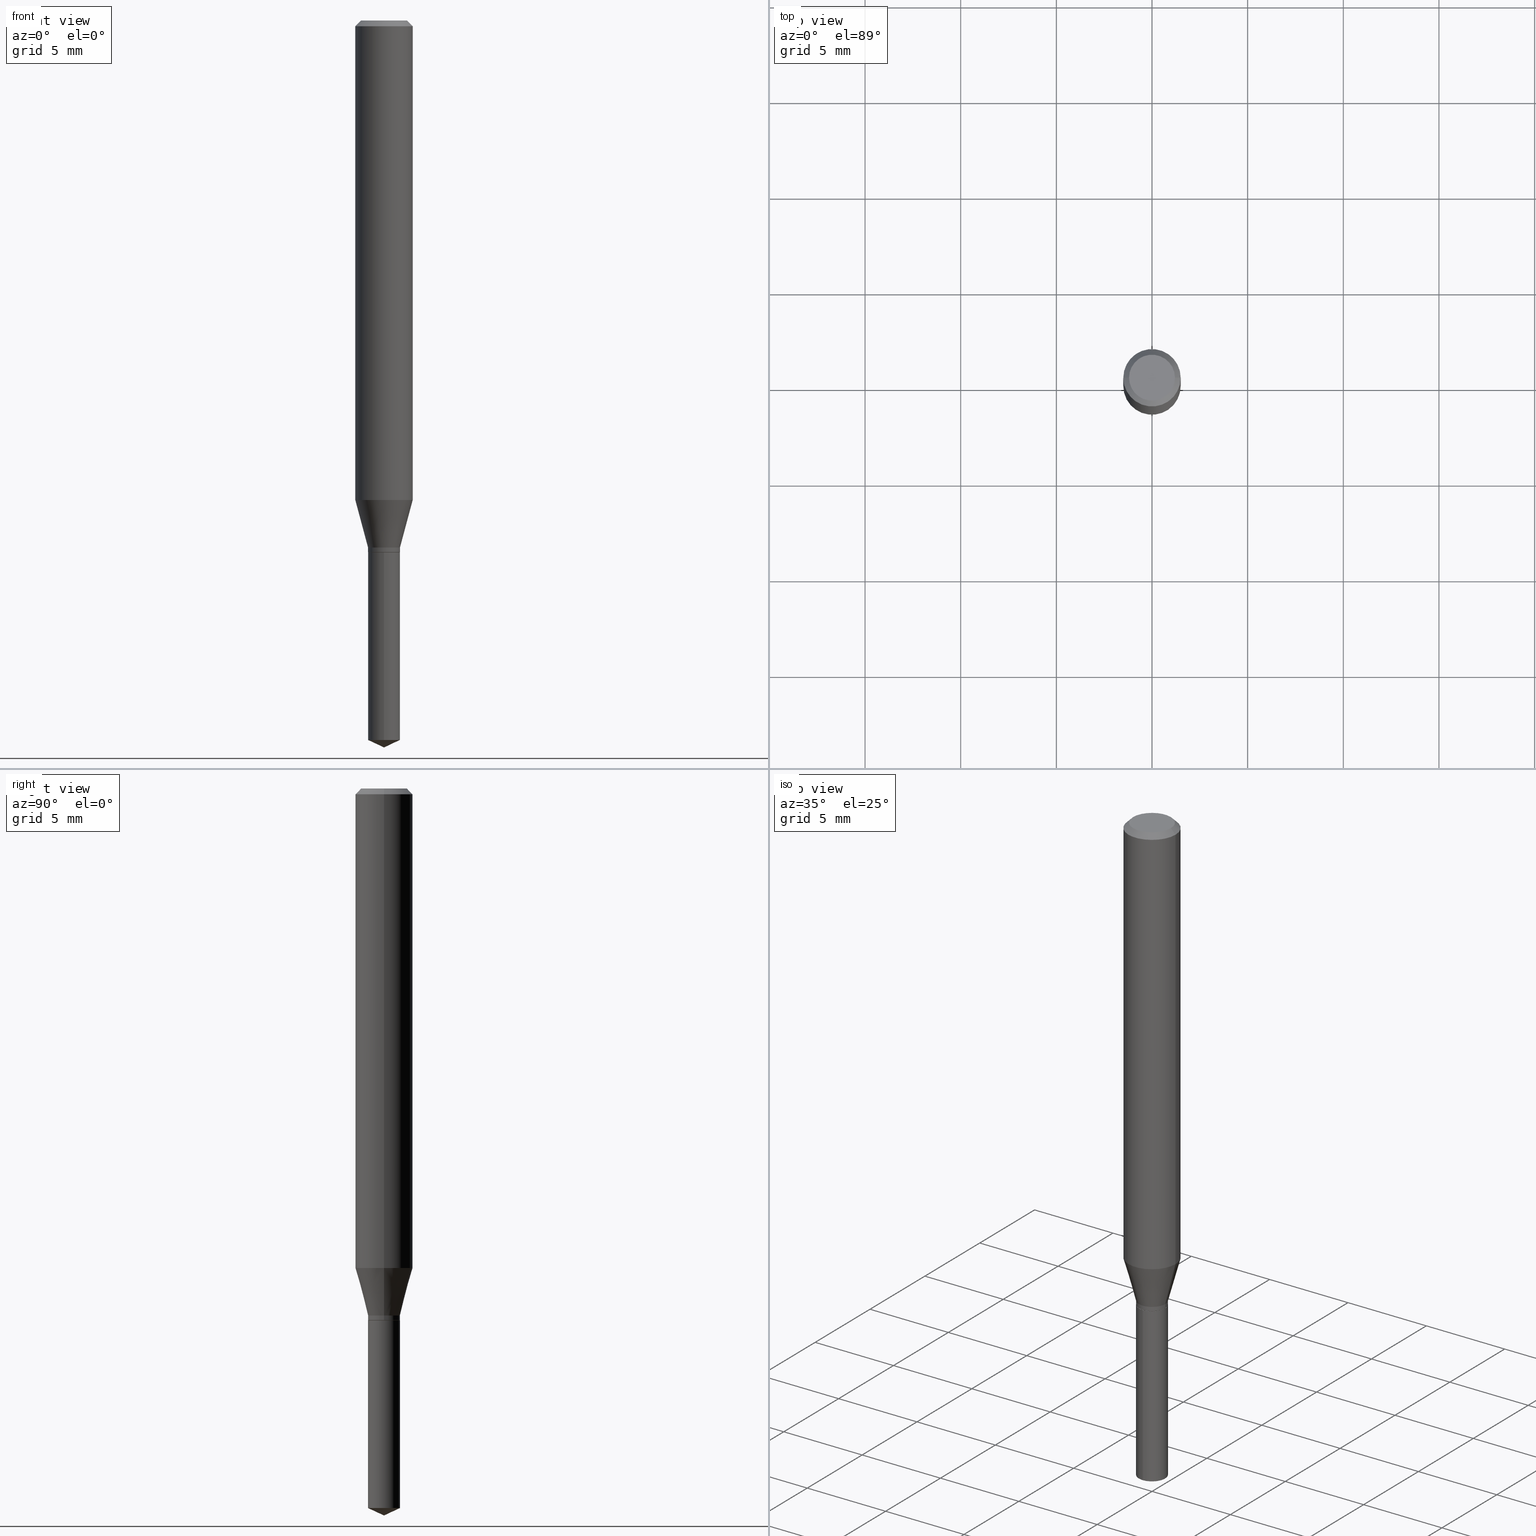
[diagram: canonical four-view strip — front | top / right | iso, engineering-drawing reading convention]
A machine part, canonical four-view strip (front | top / right | iso — engineering-drawing reading convention). The complete STEP part file that produces these views, byte-faithful:
ISO-10303-21;
HEADER;
FILE_DESCRIPTION (( 'STEP AP203' ),
    '1' );
FILE_NAME ('07905.STEP',
    '2024-04-24T05:50:20',
    ( '' ),
    ( '' ),
    'SwSTEP 2.0',
    'SolidWorks 2023',
    '' );
FILE_SCHEMA (( 'CONFIG_CONTROL_DESIGN' ));
ENDSEC;

DATA;
#1 = CARTESIAN_POINT ( 'NONE',  ( 2.888098660104664204E-31, -4.123439461173780263E-17, -0.01181000000000007218 ) ) ;
#2 = CONICAL_SURFACE ( 'NONE', #67, 84.42940631927396566, 1.134464013796314230 ) ;
#3 = DATE_AND_TIME ( #455, #416 ) ;
#4 = CC_DESIGN_APPROVAL ( #61, ( #77 ) ) ;
#5 = ORIENTED_EDGE ( 'NONE', *, *, #81, .F. ) ;
#6 = DIRECTION ( 'NONE',  ( 1.000000000000000000, -6.982962677686266711E-15, 0.000000000000000000 ) ) ;
#7 = ORIENTED_EDGE ( 'NONE', *, *, #263, .T. ) ;
#8 = DIRECTION ( 'NONE',  ( -2.445468806185136877E-29, 3.491481338843145188E-15, 1.000000000000000000 ) ) ;
#9 = ORIENTED_EDGE ( 'NONE', *, *, #81, .T. ) ;
#10 = PERSON ( 'UNSPECIFIED', 'UNSPECIFIED', 'UNSPECIFIED', ('UNSPECIFIED'), ('UNSPECIFIED'), ('UNSPECIFIED') ) ;
#11 = UNCERTAINTY_MEASURE_WITH_UNIT (LENGTH_MEASURE( 1.000000000000000082E-05 ), #420, 'distance_accuracy_value', 'NONE');
#12 = VECTOR ( 'NONE', #133, 39.37007874015748143 ) ;
#13 = ORIENTED_EDGE ( 'NONE', *, *, #481, .T. ) ;
#14 = APPROVAL_PERSON_ORGANIZATION ( #109, #231, #113 ) ;
#15 = CARTESIAN_POINT ( 'NONE',  ( 2.652355467188399034E-29, -3.786860660109275425E-15, -1.084600000000000009 ) ) ;
#16 = ORIENTED_EDGE ( 'NONE', *, *, #24, .F. ) ;
#17 = ADVANCED_FACE ( 'NONE', ( #473 ), #139, .T. ) ;
#18 = CARTESIAN_POINT ( 'NONE',  ( 0.05905000000000011628, -3.857808499570329297E-15, -0.9868202688416950474 ) ) ;
#19 = LINE ( 'NONE', #390, #128 ) ;
#20 = APPLICATION_CONTEXT ( 'configuration controlled 3d designs of mechanical parts and assemblies' ) ;
#21 = VECTOR ( 'NONE', #406, 39.37007874015748143 ) ;
#22 = CIRCLE ( 'NONE', #104, 0.03284999999999999726 ) ;
#23 = DIRECTION ( 'NONE',  ( -2.445468806185136597E-29, 3.491481338843145583E-15, 1.000000000000000000 ) ) ;
#24 = EDGE_CURVE ( 'NONE', #42, #486, #441, .T. ) ;
#25 = CARTESIAN_POINT ( 'NONE',  ( -0.03284999999999999726, -3.553447371412082977E-15, -1.084600000000000009 ) ) ;
#26 = VERTEX_POINT ( 'NONE', #65 ) ;
#27 = DIRECTION ( 'NONE',  ( -2.445468806185136597E-29, 3.491481338843145583E-15, 1.000000000000000000 ) ) ;
#28 = DIRECTION ( 'NONE',  ( 1.000000000000000000, -6.982962677686272233E-15, 0.000000000000000000 ) ) ;
#29 = DIRECTION ( 'NONE',  ( 1.000000000000000000, -6.982962677686273021E-15, 0.000000000000000000 ) ) ;
#31 = EDGE_CURVE ( 'NONE', #289, #193, #248, .T. ) ;
#30 = AXIS2_PLACEMENT_3D ( 'NONE', #384, #343, #64 ) ;
#32 = DIRECTION ( 'NONE',  ( 1.000000000000000000, -6.982962677686266711E-15, 0.000000000000000000 ) ) ;
#33 = PLANE ( 'NONE',  #250 ) ;
#34 = COORDINATED_UNIVERSAL_TIME_OFFSET ( 5, 0, .BEHIND. ) ;
#35 = CARTESIAN_POINT ( 'NONE',  ( 4.132873053354867254E-48, -5.900647395337818946E-34, -1.690012582823346072E-19 ) ) ;
#36 = AXIS2_PLACEMENT_3D ( 'NONE', #426, #41, #484 ) ;
#37 = AXIS2_PLACEMENT_3D ( 'NONE', #245, #136, #433 ) ;
#38 = PERSON_AND_ORGANIZATION ( #10, #142 ) ;
#39 = EDGE_LOOP ( 'NONE', ( #463, #218 ) ) ;
#40 = DIRECTION ( 'NONE',  ( -2.445470214571802116E-29, 3.491479321953280158E-15, 1.000000000000000000 ) ) ;
#41 = DIRECTION ( 'NONE',  ( -2.445468806185136597E-29, 3.491481338843145583E-15, 1.000000000000000000 ) ) ;
#42 = VERTEX_POINT ( 'NONE', #293 ) ;
#43 = ADVANCED_FACE ( 'NONE', ( #359 ), #105, .T. ) ;
#44 = PERSON_AND_ORGANIZATION_ROLE ( 'creator' ) ;
#45 = EDGE_CURVE ( 'NONE', #268, #114, #254, .T. ) ;
#46 = CIRCLE ( 'NONE', #197, 0.03284999999999999726 ) ;
#47 = ORIENTED_EDGE ( 'NONE', *, *, #45, .T. ) ;
#48 = VERTEX_POINT ( 'NONE', #450 ) ;
#49 = EDGE_LOOP ( 'NONE', ( #262, #51, #301, #239 ) ) ;
#50 = DIRECTION ( 'NONE',  ( -6.982962677686266711E-15, -1.000000000000000000, 4.158063917297204420E-15 ) ) ;
#51 = ORIENTED_EDGE ( 'NONE', *, *, #31, .T. ) ;
#52 = CC_DESIGN_SECURITY_CLASSIFICATION ( #77, ( #444 ) ) ;
#53 = CARTESIAN_POINT ( 'NONE',  ( 0.000000000000000000, 0.000000000000000000, 0.000000000000000000 ) ) ;
#54 = ORIENTED_EDGE ( 'NONE', *, *, #240, .F. ) ;
#55 = DIRECTION ( 'NONE',  ( -2.445468806185136877E-29, 3.491481338843145188E-15, 1.000000000000000000 ) ) ;
#56 = CARTESIAN_POINT ( 'NONE',  ( 2.676565608369631794E-29, -3.821426325363822773E-15, -1.094499999999999806 ) ) ;
#57 = ADVANCED_FACE ( 'NONE', ( #108 ), #58, .T. ) ;
#58 = CONICAL_SURFACE ( 'NONE', #141, 0.03234999999999999681, 0.7853981633972775267 ) ;
#59 = AXIS2_PLACEMENT_3D ( 'NONE', #453, #479, #171 ) ;
#60 = DIRECTION ( 'NONE',  ( -2.445468806185136597E-29, 3.491481338843145583E-15, 1.000000000000000000 ) ) ;
#61 = APPROVAL ( #294, 'UNSPECIFIED' ) ;
#62 = PERSON_AND_ORGANIZATION ( #10, #142 ) ;
#63 = DIRECTION ( 'NONE',  ( -0.2588190451025211836, 5.211531920934547886E-15, 0.9659258262890679791 ) ) ;
#64 = DIRECTION ( 'NONE',  ( 1.000000000000000000, 0.000000000000000000, 0.000000000000000000 ) ) ;
#65 = CARTESIAN_POINT ( 'NONE',  ( -0.05904999999999999832, -1.323773988566005771E-15, -0.01181000000000007218 ) ) ;
#66 = CARTESIAN_POINT ( 'NONE',  ( 2.675342873966538993E-29, -3.819680584694400481E-15, -1.093999999999999861 ) ) ;
#67 = AXIS2_PLACEMENT_3D ( 'NONE', #183, #398, #215 ) ;
#68 = LOCAL_TIME ( 1, 50, 20.00000000000000000, #80 ) ;
#69 = APPROVAL_ROLE ( '' ) ;
#70 = ORIENTED_EDGE ( 'NONE', *, *, #87, .T. ) ;
#71 = LINE ( 'NONE', #334, #134 ) ;
#72 = CARTESIAN_POINT ( 'NONE',  ( 0.03284999999999999726, -4.016250984071269671E-15, -1.084600000000000009 ) ) ;
#73 = LINE ( 'NONE', #220, #377 ) ;
#74 = DIRECTION ( 'NONE',  ( -2.445468806185136597E-29, 3.491481338843145583E-15, 1.000000000000000000 ) ) ;
#75 = DATE_TIME_ROLE ( 'creation_date' ) ;
#76 = ORIENTED_EDGE ( 'NONE', *, *, #200, .F. ) ;
#77 = SECURITY_CLASSIFICATION ( '', '', #447 ) ;
#78 = SHAPE_DEFINITION_REPRESENTATION ( #156, #170 ) ;
#79 = ORIENTED_EDGE ( 'NONE', *, *, #31, .F. ) ;
#80 = COORDINATED_UNIVERSAL_TIME_OFFSET ( 5, 0, .BEHIND. ) ;
#81 = EDGE_CURVE ( 'NONE', #340, #268, #414, .T. ) ;
#82 = EDGE_LOOP ( 'NONE', ( #151, #316 ) ) ;
#83 = AXIS2_PLACEMENT_3D ( 'NONE', #187, #369, #111 ) ;
#84 = CIRCLE ( 'NONE', #59, 0.03284999999999999726 ) ;
#85 = ORIENTED_EDGE ( 'NONE', *, *, #94, .F. ) ;
#86 = EDGE_LOOP ( 'NONE', ( #85, #310, #338, #5 ) ) ;
#87 = EDGE_CURVE ( 'NONE', #116, #48, #19, .T. ) ;
#88 = ORIENTED_EDGE ( 'NONE', *, *, #382, .T. ) ;
#89 = CARTESIAN_POINT ( 'NONE',  ( -9.261968845786000133E-28, 1.322362114038720264E-13, 37.87397874015748300 ) ) ;
#90 = VECTOR ( 'NONE', #178, 39.37007874015748854 ) ;
#91 = ADVANCED_FACE ( 'NONE', ( #392 ), #95, .T. ) ;
#92 = ORIENTED_EDGE ( 'NONE', *, *, #45, .F. ) ;
#93 = DIRECTION ( 'NONE',  ( -2.445468806185136597E-29, 3.491481338843145583E-15, 1.000000000000000000 ) ) ;
#94 = EDGE_CURVE ( 'NONE', #193, #340, #393, .T. ) ;
#95 = CYLINDRICAL_SURFACE ( 'NONE', #460, 0.03284999999999999726 ) ;
#96 = LINE ( 'NONE', #25, #237 ) ;
#97 = CC_DESIGN_APPROVAL ( #115, ( #444 ) ) ;
#98 = CARTESIAN_POINT ( 'NONE',  ( 2.676565608369632355E-29, -3.821426325363822773E-15, -1.094500000000000028 ) ) ;
#99 = CARTESIAN_POINT ( 'NONE',  ( 2.676565608369632355E-29, -3.821426325363822773E-15, -1.094500000000000028 ) ) ;
#100 = ADVANCED_FACE ( 'NONE', ( #431 ), #265, .T. ) ;
#101 = CARTESIAN_POINT ( 'NONE',  ( 0.05905000000000006077, -4.123439461173744764E-16, 2.879382386107503023E-30 ) ) ;
#102 = AXIS2_PLACEMENT_3D ( 'NONE', #285, #480, #368 ) ;
#103 = CARTESIAN_POINT ( 'NONE',  ( -0.05905000000000011628, -3.025889067986614883E-15, -0.9868202688416950474 ) ) ;
#104 = AXIS2_PLACEMENT_3D ( 'NONE', #302, #40, #381 ) ;
#105 = CYLINDRICAL_SURFACE ( 'NONE', #83, 0.05905000000000006077 ) ;
#106 = CARTESIAN_POINT ( 'NONE',  ( 0.03234999999999999681, -4.047325167986974013E-15, -1.094500000000000028 ) ) ;
#107 = ADVANCED_FACE ( 'NONE', ( #465 ), #260, .T. ) ;
#108 = FACE_OUTER_BOUND ( 'NONE', #365, .T. ) ;
#109 = PERSON_AND_ORGANIZATION ( #10, #142 ) ;
#110 = EDGE_LOOP ( 'NONE', ( #418, #456, #383, #76 ) ) ;
#111 = DIRECTION ( 'NONE',  ( 1.000000000000000000, -6.982962677686266711E-15, 4.876176775795935793E-29 ) ) ;
#112 = CC_DESIGN_APPROVAL ( #231, ( #219 ) ) ;
#113 = APPROVAL_ROLE ( '' ) ;
#114 = VERTEX_POINT ( 'NONE', #18 ) ;
#115 = APPROVAL ( #217, 'UNSPECIFIED' ) ;
#116 = VERTEX_POINT ( 'NONE', #158 ) ;
#117 = ORIENTED_EDGE ( 'NONE', *, *, #179, .F. ) ;
#118 = VECTOR ( 'NONE', #434, 39.37007874015748143 ) ;
#119 = CIRCLE ( 'NONE', #470, 0.03284999999999999726 ) ;
#120 = ORIENTED_EDGE ( 'NONE', *, *, #240, .T. ) ;
#121 = CARTESIAN_POINT ( 'NONE',  ( 3.621206228633116670E-29, -5.170121219570327445E-15, -1.480781793429608140 ) ) ;
#122 = ADVANCED_FACE ( 'NONE', ( #127 ), #271, .T. ) ;
#123 = DIRECTION ( 'NONE',  ( -2.445468806185136597E-29, 3.491481338843145583E-15, 1.000000000000000000 ) ) ;
#124 = ORIENTED_EDGE ( 'NONE', *, *, #279, .F. ) ;
#125 = CARTESIAN_POINT ( 'NONE',  ( 2.888098660104664204E-31, -4.123439461173780263E-17, -0.01181000000000007218 ) ) ;
#126 = ORIENTED_EDGE ( 'NONE', *, *, #439, .F. ) ;
#127 = FACE_OUTER_BOUND ( 'NONE', #110, .T. ) ;
#128 = VECTOR ( 'NONE', #204, 39.37007874015748143 ) ;
#129 = ADVANCED_FACE ( 'NONE', ( #421 ), #394, .T. ) ;
#130 = DIRECTION ( 'NONE',  ( -6.982962677686266711E-15, -1.000000000000000000, 4.158063917297204420E-15 ) ) ;
#131 = DIRECTION ( 'NONE',  ( -2.445470214571802116E-29, 3.491479321953280158E-15, 1.000000000000000000 ) ) ;
#132 = DESIGN_CONTEXT ( 'detailed design', #356, 'design' ) ;
#133 = DIRECTION ( 'NONE',  ( -2.445468806185136877E-29, 3.491481338843145188E-15, 1.000000000000000000 ) ) ;
#134 = VECTOR ( 'NONE', #174, 39.37007874015748143 ) ;
#135 = CARTESIAN_POINT ( 'NONE',  ( 2.676565608369631794E-29, -3.821426325363822773E-15, -1.094499999999999806 ) ) ;
#136 = DIRECTION ( 'NONE',  ( -2.445468806185136597E-29, 3.491481338843145583E-15, 1.000000000000000000 ) ) ;
#137 =( LENGTH_UNIT ( ) NAMED_UNIT ( * ) SI_UNIT ( $, .METRE. ) );
#138 = DIRECTION ( 'NONE',  ( -2.445470214571802396E-29, 3.491479321953280158E-15, 1.000000000000000000 ) ) ;
#139 = CONICAL_SURFACE ( 'NONE', #206, 0.05904999999999999832, 0.7853981633974452814 ) ;
#140 = EDGE_CURVE ( 'NONE', #340, #308, #96, .T. ) ;
#141 = AXIS2_PLACEMENT_3D ( 'NONE', #435, #74, #184 ) ;
#142 = ORGANIZATION ( 'UNSPECIFIED', 'UNSPECIFIED', '' ) ;
#143 = CARTESIAN_POINT ( 'NONE',  ( -2.293903239619670800E-16, -0.03285000000000382059, -1.094499999999999806 ) ) ;
#144 = CALENDAR_DATE ( 2024, 24, 4 ) ;
#145 = DIRECTION ( 'NONE',  ( 0.7071067811865453523, -7.319954787623248157E-15, -0.7071067811865496822 ) ) ;
#146 = COORDINATED_UNIVERSAL_TIME_OFFSET ( 5, 0, .BEHIND. ) ;
#147 = ORIENTED_EDGE ( 'NONE', *, *, #346, .F. ) ;
#148 = CIRCLE ( 'NONE', #401, 0.03234999999999999681 ) ;
#149 = VECTOR ( 'NONE', #309, 39.37007874015748854 ) ;
#150 = ORIENTED_EDGE ( 'NONE', *, *, #140, .F. ) ;
#151 = ORIENTED_EDGE ( 'NONE', *, *, #229, .F. ) ;
#152 = CARTESIAN_POINT ( 'NONE',  ( -0.03284999999999999726, -3.569857333704645111E-15, -1.084600000000000009 ) ) ;
#153 = ORIENTED_EDGE ( 'NONE', *, *, #459, .T. ) ;
#154 = AXIS2_PLACEMENT_3D ( 'NONE', #213, #123, #312 ) ;
#155 = ORIENTED_EDGE ( 'NONE', *, *, #266, .T. ) ;
#156 = PRODUCT_DEFINITION_SHAPE ( 'NONE', 'NONE',  #219 ) ;
#157 = APPLICATION_PROTOCOL_DEFINITION ( 'international standard', 'config_control_design', 1994, #20 ) ;
#158 = CARTESIAN_POINT ( 'NONE',  ( 3.658667988020872822E-29, -5.223602213574301462E-15, -1.496099999999999985 ) ) ;
#159 = ORIENTED_EDGE ( 'NONE', *, *, #357, .F. ) ;
#160 = DIRECTION ( 'NONE',  ( 1.000000000000000000, -6.982962677686266711E-15, 0.000000000000000000 ) ) ;
#161 = DIRECTION ( 'NONE',  ( -2.445468806185136597E-29, 3.491481338843145583E-15, 1.000000000000000000 ) ) ;
#162 = EDGE_CURVE ( 'NONE', #490, #287, #163, .T. ) ;
#163 = LINE ( 'NONE', #278, #223 ) ;
#164 = AXIS2_PLACEMENT_3D ( 'NONE', #205, #468, #274 ) ;
#165 = AXIS2_PLACEMENT_3D ( 'NONE', #35, #288, #442 ) ;
#166 = CARTESIAN_POINT ( 'NONE',  ( 0.03284999999999999726, -2.293903239619938520E-16, 1.601824070848965135E-30 ) ) ;
#167 = DIRECTION ( 'NONE',  ( 1.000000000000000000, -6.982962677686266711E-15, 4.876176775795936914E-29 ) ) ;
#168 = CYLINDRICAL_SURFACE ( 'NONE', #37, 0.05905000000000006077 ) ;
#169 = FACE_OUTER_BOUND ( 'NONE', #39, .T. ) ;
#170 = ADVANCED_BREP_SHAPE_REPRESENTATION ( '07905', ( #277, #267, #30 ), #207 ) ;
#171 = DIRECTION ( 'NONE',  ( -6.982962677686266711E-15, -1.000000000000000000, 0.000000000000000000 ) ) ;
#172 = CIRCLE ( 'NONE', #299, 0.05905000000000011628 ) ;
#173 = CIRCLE ( 'NONE', #478, 0.05905000000000011628 ) ;
#174 = DIRECTION ( 'NONE',  ( -0.7071067811865453523, 2.468850131082234184E-15, -0.7071067811865496822 ) ) ;
#175 = CARTESIAN_POINT ( 'NONE',  ( 0.04724000000000000421, -3.852183633974369345E-16, -3.380025165621689721E-19 ) ) ;
#176 = PLANE ( 'NONE',  #165 ) ;
#177 = DIRECTION ( 'NONE',  ( 1.000000000000000000, -6.982962677686266711E-15, 0.000000000000000000 ) ) ;
#178 = DIRECTION ( 'NONE',  ( 0.2588190451025211836, 1.565188264969622559E-15, 0.9659258262890679791 ) ) ;
#179 = EDGE_CURVE ( 'NONE', #486, #42, #370, .T. ) ;
#180 = APPROVAL_DATE_TIME ( #412, #115 ) ;
#181 = EDGE_LOOP ( 'NONE', ( #333, #13, #452 ) ) ;
#182 = CONICAL_SURFACE ( 'NONE', #430, 0.03284999999999999726, 0.2617993877991499074 ) ;
#183 = CARTESIAN_POINT ( 'NONE',  ( -9.261968845786000133E-28, 1.322362114038720264E-13, 37.87397874015748300 ) ) ;
#184 = DIRECTION ( 'NONE',  ( 1.000000000000000000, -6.982962677686272233E-15, 0.000000000000000000 ) ) ;
#185 = DATE_AND_TIME ( #225, #68 ) ;
#186 = LINE ( 'NONE', #296, #446 ) ;
#187 = CARTESIAN_POINT ( 'NONE',  ( 0.000000000000000000, 0.000000000000000000, 0.000000000000000000 ) ) ;
#188 = ORIENTED_EDGE ( 'NONE', *, *, #266, .F. ) ;
#189 = ADVANCED_FACE ( 'NONE', ( #241 ), #182, .T. ) ;
#190 = PERSON_AND_ORGANIZATION ( #10, #142 ) ;
#191 = DIRECTION ( 'NONE',  ( -6.982962677686266711E-15, -1.000000000000000000, 0.000000000000000000 ) ) ;
#192 = EDGE_LOOP ( 'NONE', ( #159, #16, #234, #153 ) ) ;
#193 = VERTEX_POINT ( 'NONE', #471 ) ;
#194 = VERTEX_POINT ( 'NONE', #427 ) ;
#195 =( NAMED_UNIT ( * ) PLANE_ANGLE_UNIT ( ) SI_UNIT ( $, .RADIAN. ) );
#196 = AXIS2_PLACEMENT_3D ( 'NONE', #318, #60, #280 ) ;
#197 = AXIS2_PLACEMENT_3D ( 'NONE', #15, #211, #233 ) ;
#198 = ORIENTED_EDGE ( 'NONE', *, *, #436, .T. ) ;
#199 = CARTESIAN_POINT ( 'NONE',  ( 2.676565608369631794E-29, -3.821426325363822773E-15, -1.094499999999999806 ) ) ;
#200 = EDGE_CURVE ( 'NONE', #269, #268, #242, .T. ) ;
#201 = DIRECTION ( 'NONE',  ( -2.445470214571802396E-29, 3.491479321953280158E-15, 1.000000000000000000 ) ) ;
#202 = DIRECTION ( 'NONE',  ( 2.445468806185136597E-29, -3.491481338843145583E-15, -1.000000000000000000 ) ) ;
#203 = CC_DESIGN_PERSON_AND_ORGANIZATION_ASSIGNMENT ( #488, #44, ( #219 ) ) ;
#204 = DIRECTION ( 'NONE',  ( -6.328713451373368590E-15, -0.9063077870366484934, 0.4226182617407026054 ) ) ;
#205 = CARTESIAN_POINT ( 'NONE',  ( 2.652355467188399034E-29, -3.786860660109275425E-15, -1.084600000000000009 ) ) ;
#206 = AXIS2_PLACEMENT_3D ( 'NONE', #397, #202, #276 ) ;
#207 =( GEOMETRIC_REPRESENTATION_CONTEXT ( 3 ) GLOBAL_UNCERTAINTY_ASSIGNED_CONTEXT ( ( #11 ) ) GLOBAL_UNIT_ASSIGNED_CONTEXT ( ( #420, #195, #437 ) ) REPRESENTATION_CONTEXT ( 'NONE', 'WORKASPACE' ) );
#208 = DIRECTION ( 'NONE',  ( -2.445468806185136597E-29, 3.491481338843145583E-15, 1.000000000000000000 ) ) ;
#209 = ADVANCED_FACE ( 'NONE', ( #353 ), #281, .T. ) ;
#210 = CARTESIAN_POINT ( 'NONE',  ( 2.676565608369631794E-29, -3.821426325363822773E-15, -1.094499999999999806 ) ) ;
#211 = DIRECTION ( 'NONE',  ( -2.445468806185136597E-29, 3.491481338843145583E-15, 1.000000000000000000 ) ) ;
#212 = DIRECTION ( 'NONE',  ( 2.445470214571801836E-29, -3.491479321953280158E-15, -1.000000000000000000 ) ) ;
#213 = CARTESIAN_POINT ( 'NONE',  ( 2.652355467188399034E-29, -3.786860660109275425E-15, -1.084600000000000009 ) ) ;
#214 = DIRECTION ( 'NONE',  ( -2.445470214571802116E-29, 3.491479321953280158E-15, 1.000000000000000000 ) ) ;
#215 = DIRECTION ( 'NONE',  ( -6.982962677686267499E-15, -1.000000000000000000, 3.520397390770469253E-15 ) ) ;
#216 = ADVANCED_FACE ( 'NONE', ( #428 ), #243, .T. ) ;
#217 = APPROVAL_STATUS ( 'not_yet_approved' ) ;
#218 = ORIENTED_EDGE ( 'NONE', *, *, #439, .T. ) ;
#219 = PRODUCT_DEFINITION ( 'UNKNOWN', '', #444, #132 ) ;
#220 = CARTESIAN_POINT ( 'NONE',  ( -0.05905000000000006077, 4.195754854663395916E-16, -2.904631170795524694E-30 ) ) ;
#221 = DIMENSIONAL_EXPONENTS ( 1.000000000000000000, 0.000000000000000000, 0.000000000000000000, 0.000000000000000000, 0.000000000000000000, 0.000000000000000000, 0.000000000000000000 ) ;
#222 = COORDINATED_UNIVERSAL_TIME_OFFSET ( 5, 0, .BEHIND. ) ;
#223 = VECTOR ( 'NONE', #201, 39.37007874015748143 ) ;
#224 = LOCAL_TIME ( 1, 50, 20.00000000000000000, #371 ) ;
#225 = CALENDAR_DATE ( 2024, 24, 4 ) ;
#226 = DIRECTION ( 'NONE',  ( -2.445470214571802116E-29, 3.491479321953280158E-15, 1.000000000000000000 ) ) ;
#227 = ORIENTED_EDGE ( 'NONE', *, *, #357, .T. ) ;
#229 = EDGE_CURVE ( 'NONE', #415, #289, #148, .T. ) ;
#228 = LOCAL_TIME ( 1, 50, 20.00000000000000000, #34 ) ;
#230 = ORIENTED_EDGE ( 'NONE', *, *, #179, .T. ) ;
#231 = APPROVAL ( #326, 'UNSPECIFIED' ) ;
#232 = ORIENTED_EDGE ( 'NONE', *, *, #279, .T. ) ;
#233 = DIRECTION ( 'NONE',  ( 1.000000000000000000, -6.982962677686273021E-15, 0.000000000000000000 ) ) ;
#234 = ORIENTED_EDGE ( 'NONE', *, *, #259, .T. ) ;
#235 = DIRECTION ( 'NONE',  ( -2.445468806185136597E-29, 3.491481338843145583E-15, 1.000000000000000000 ) ) ;
#236 = DIRECTION ( 'NONE',  ( 1.000000000000000000, -6.982962677686266711E-15, 4.876185090822587894E-29 ) ) ;
#237 = VECTOR ( 'NONE', #63, 39.37007874015748854 ) ;
#238 = LOCAL_TIME ( 1, 50, 20.00000000000000000, #146 ) ;
#239 = ORIENTED_EDGE ( 'NONE', *, *, #317, .F. ) ;
#240 = EDGE_CURVE ( 'NONE', #114, #255, #258, .T. ) ;
#241 = FACE_OUTER_BOUND ( 'NONE', #457, .T. ) ;
#242 = LINE ( 'NONE', #166, #12 ) ;
#243 = CYLINDRICAL_SURFACE ( 'NONE', #409, 0.03284999999999999726 ) ;
#244 = DIRECTION ( 'NONE',  ( -2.445470214571802116E-29, 3.491479321953280158E-15, 1.000000000000000000 ) ) ;
#245 = CARTESIAN_POINT ( 'NONE',  ( 0.000000000000000000, 0.000000000000000000, 0.000000000000000000 ) ) ;
#246 = CARTESIAN_POINT ( 'NONE',  ( 0.03284999999999999726, -4.049070908656394727E-15, -1.093999999999999861 ) ) ;
#247 = FACE_OUTER_BOUND ( 'NONE', #411, .T. ) ;
#248 = LINE ( 'NONE', #445, #21 ) ;
#249 = PERSON_AND_ORGANIZATION_ROLE ( 'classification_officer' ) ;
#250 = AXIS2_PLACEMENT_3D ( 'NONE', #135, #212, #321 ) ;
#251 = AXIS2_PLACEMENT_3D ( 'NONE', #1, #339, #6 ) ;
#252 = ORIENTED_EDGE ( 'NONE', *, *, #423, .F. ) ;
#253 = LINE ( 'NONE', #106, #424 ) ;
#254 = LINE ( 'NONE', #72, #90 ) ;
#255 = VERTEX_POINT ( 'NONE', #290 ) ;
#256 = CARTESIAN_POINT ( 'NONE',  ( 2.334132886972291299E-16, 0.03284999999999617393, -1.094500000000000028 ) ) ;
#257 = DATE_AND_TIME ( #144, #238 ) ;
#258 = LINE ( 'NONE', #101, #118 ) ;
#259 = EDGE_CURVE ( 'NONE', #42, #26, #71, .T. ) ;
#260 = CONICAL_SURFACE ( 'NONE', #306, 0.05904999999999999832, 0.7853981633974452814 ) ;
#261 = CALENDAR_DATE ( 2024, 24, 4 ) ;
#262 = ORIENTED_EDGE ( 'NONE', *, *, #229, .T. ) ;
#263 = EDGE_CURVE ( 'NONE', #289, #415, #469, .T. ) ;
#264 = ORIENTED_EDGE ( 'NONE', *, *, #325, .T. ) ;
#265 = CONICAL_SURFACE ( 'NONE', #164, 0.03284999999999999726, 0.2617993877991499074 ) ;
#266 = EDGE_CURVE ( 'NONE', #114, #308, #172, .T. ) ;
#267 = MANIFOLD_SOLID_BREP ( 'Body-Move/Copy2[2]', #376 ) ;
#268 = VERTEX_POINT ( 'NONE', #366 ) ;
#269 = VERTEX_POINT ( 'NONE', #246 ) ;
#270 = CARTESIAN_POINT ( 'NONE',  ( 0.03234999999999999681, -4.047325167986974013E-15, -1.094500000000000028 ) ) ;
#271 = CYLINDRICAL_SURFACE ( 'NONE', #387, 0.03284999999999999726 ) ;
#272 = ADVANCED_FACE ( 'NONE', ( #169 ), #33, .F. ) ;
#273 = EDGE_LOOP ( 'NONE', ( #378, #327, #419, #124 ) ) ;
#274 = DIRECTION ( 'NONE',  ( 1.000000000000000000, -6.982962677686273021E-15, 0.000000000000000000 ) ) ;
#275 = VECTOR ( 'NONE', #55, 39.37007874015748143 ) ;
#276 = DIRECTION ( 'NONE',  ( -1.000000000000000000, 6.982962677686266711E-15, 0.000000000000000000 ) ) ;
#277 = MANIFOLD_SOLID_BREP ( 'Body-Move/Copy2[1]', #350 ) ;
#278 = CARTESIAN_POINT ( 'NONE',  ( 2.334132886972196142E-16, 0.03284999999999618087, -1.094500000000000028 ) ) ;
#279 = EDGE_CURVE ( 'NONE', #48, #194, #328, .T. ) ;
#280 = DIRECTION ( 'NONE',  ( 1.000000000000000000, -6.982962677686272233E-15, 0.000000000000000000 ) ) ;
#281 = CONICAL_SURFACE ( 'NONE', #196, 0.03234999999999999681, 0.7853981633972775267 ) ;
#282 = AXIS2_PLACEMENT_3D ( 'NONE', #199, #214, #50 ) ;
#283 = ADVANCED_FACE ( 'NONE', ( #400 ), #2, .T. ) ;
#284 = CARTESIAN_POINT ( 'NONE',  ( 2.334132886972290313E-16, 0.03284999999999482084, -1.480781793429608140 ) ) ;
#285 = CARTESIAN_POINT ( 'NONE',  ( -5.504995662457993253E-30, -8.442767328556305867E-15, -1.094500000000000028 ) ) ;
#286 = APPROVAL_DATE_TIME ( #185, #61 ) ;
#287 = VERTEX_POINT ( 'NONE', #256 ) ;
#288 = DIRECTION ( 'NONE',  ( 2.438088387897960049E-29, -3.491481338843145188E-15, -1.000000000000000000 ) ) ;
#289 = VERTEX_POINT ( 'NONE', #358 ) ;
#290 = CARTESIAN_POINT ( 'NONE',  ( 0.05904999999999999832, -4.535783407291118600E-16, -0.01181000000000007218 ) ) ;
#291 = DATE_TIME_ROLE ( 'classification_date' ) ;
#292 = ADVANCED_FACE ( 'NONE', ( #324 ), #449, .F. ) ;
#293 = CARTESIAN_POINT ( 'NONE',  ( -0.04724000000000000421, 3.504923541997677355E-16, -3.380025165670481712E-19 ) ) ;
#294 = APPROVAL_STATUS ( 'not_yet_approved' ) ;
#295 = ORIENTED_EDGE ( 'NONE', *, *, #374, .F. ) ;
#296 = CARTESIAN_POINT ( 'NONE',  ( 0.05904999999999999832, -4.463468013801466955E-16, -0.01181000000000007218 ) ) ;
#297 = CC_DESIGN_PERSON_AND_ORGANIZATION_ASSIGNMENT ( #190, #249, ( #77 ) ) ;
#298 = CALENDAR_DATE ( 2024, 24, 4 ) ;
#299 = AXIS2_PLACEMENT_3D ( 'NONE', #483, #408, #177 ) ;
#300 = ADVANCED_FACE ( 'NONE', ( #363 ), #176, .F. ) ;
#301 = ORIENTED_EDGE ( 'NONE', *, *, #454, .F. ) ;
#302 = CARTESIAN_POINT ( 'NONE',  ( 2.676565608369631794E-29, -3.821426325363822773E-15, -1.094499999999999806 ) ) ;
#303 = CC_DESIGN_PERSON_AND_ORGANIZATION_ASSIGNMENT ( #62, #367, ( #335 ) ) ;
#304 = ORIENTED_EDGE ( 'NONE', *, *, #436, .F. ) ;
#305 = EDGE_LOOP ( 'NONE', ( #117, #227, #344, #342 ) ) ;
#306 = AXIS2_PLACEMENT_3D ( 'NONE', #125, #347, #472 ) ;
#307 = CIRCLE ( 'NONE', #282, 0.03284999999999999726 ) ;
#308 = VERTEX_POINT ( 'NONE', #103 ) ;
#309 = DIRECTION ( 'NONE',  ( 6.439704144417024831E-15, 0.9063077870366513800, 0.4226182617406963327 ) ) ;
#310 = ORIENTED_EDGE ( 'NONE', *, *, #423, .T. ) ;
#311 = DIRECTION ( 'NONE',  ( -2.445470214571802116E-29, 3.491479321953280158E-15, 1.000000000000000000 ) ) ;
#312 = DIRECTION ( 'NONE',  ( 1.000000000000000000, -6.982962677686273021E-15, 0.000000000000000000 ) ) ;
#313 = DIRECTION ( 'NONE',  ( 1.000000000000000000, -6.982962677686273021E-15, 0.000000000000000000 ) ) ;
#314 = VECTOR ( 'NONE', #138, 39.37007874015748143 ) ;
#315 = AXIS2_PLACEMENT_3D ( 'NONE', #66, #354, #429 ) ;
#316 = ORIENTED_EDGE ( 'NONE', *, *, #263, .F. ) ;
#317 = EDGE_CURVE ( 'NONE', #415, #269, #253, .T. ) ;
#318 = CARTESIAN_POINT ( 'NONE',  ( 2.676565608369632355E-29, -3.821426325363822773E-15, -1.094500000000000028 ) ) ;
#319 = DIRECTION ( 'NONE',  ( 1.000000000000000000, -6.982962677686266711E-15, 4.876176775795936914E-29 ) ) ;
#320 = CYLINDRICAL_SURFACE ( 'NONE', #389, 0.03284999999999999726 ) ;
#321 = DIRECTION ( 'NONE',  ( 6.982962677686265922E-15, 1.000000000000000000, -3.491479321953280158E-15 ) ) ;
#322 = AXIS2_PLACEMENT_3D ( 'NONE', #99, #487, #28 ) ;
#323 = CARTESIAN_POINT ( 'NONE',  ( 2.413238184763595651E-29, -3.445464553452954771E-15, -0.9868202688416950474 ) ) ;
#324 = FACE_OUTER_BOUND ( 'NONE', #82, .T. ) ;
#325 = EDGE_CURVE ( 'NONE', #308, #26, #73, .T. ) ;
#326 = APPROVAL_STATUS ( 'not_yet_approved' ) ;
#327 = ORIENTED_EDGE ( 'NONE', *, *, #162, .T. ) ;
#328 = LINE ( 'NONE', #143, #314 ) ;
#329 = AXIS2_PLACEMENT_3D ( 'NONE', #89, #131, #352 ) ;
#330 = PERSON_AND_ORGANIZATION ( #10, #142 ) ;
#331 = CIRCLE ( 'NONE', #251, 0.05904999999999999832 ) ;
#332 = EDGE_CURVE ( 'NONE', #48, #490, #443, .T. ) ;
#333 = ORIENTED_EDGE ( 'NONE', *, *, #87, .F. ) ;
#334 = CARTESIAN_POINT ( 'NONE',  ( -0.05904999999999999832, 3.711095515056362547E-16, -0.01181000000000007218 ) ) ;
#335 = PRODUCT ( '07905', '07905', '', ( #464 ) ) ;
#336 = EDGE_LOOP ( 'NONE', ( #461, #70, #295 ) ) ;
#337 = PERSON_AND_ORGANIZATION_ROLE ( 'design_supplier' ) ;
#338 = ORIENTED_EDGE ( 'NONE', *, *, #200, .T. ) ;
#339 = DIRECTION ( 'NONE',  ( -2.445468806185136597E-29, 3.491481338843145583E-15, 1.000000000000000000 ) ) ;
#340 = VERTEX_POINT ( 'NONE', #152 ) ;
#341 = ORIENTED_EDGE ( 'NONE', *, *, #325, .F. ) ;
#342 = ORIENTED_EDGE ( 'NONE', *, *, #259, .F. ) ;
#343 = DIRECTION ( 'NONE',  ( 0.000000000000000000, 0.000000000000000000, 1.000000000000000000 ) ) ;
#344 = ORIENTED_EDGE ( 'NONE', *, *, #346, .T. ) ;
#345 = CARTESIAN_POINT ( 'NONE',  ( 2.675342873966538993E-29, -3.819680584694400481E-15, -1.093999999999999861 ) ) ;
#346 = EDGE_CURVE ( 'NONE', #255, #26, #331, .T. ) ;
#347 = DIRECTION ( 'NONE',  ( 2.445468806185136597E-29, -3.491481338843145583E-15, -1.000000000000000000 ) ) ;
#348 = CARTESIAN_POINT ( 'NONE',  ( 2.652355467188399034E-29, -3.786860660109275425E-15, -1.084600000000000009 ) ) ;
#349 = EDGE_CURVE ( 'NONE', #194, #287, #22, .T. ) ;
#350 = CLOSED_SHELL ( 'NONE', ( #417, #283, #129, #91, #272 ) ) ;
#351 = AXIS2_PLACEMENT_3D ( 'NONE', #121, #226, #191 ) ;
#352 = DIRECTION ( 'NONE',  ( -6.982962677686267499E-15, -1.000000000000000000, 3.520397390770469253E-15 ) ) ;
#353 = FACE_OUTER_BOUND ( 'NONE', #49, .T. ) ;
#354 = DIRECTION ( 'NONE',  ( -2.445468806185136597E-29, 3.491481338843145583E-15, 1.000000000000000000 ) ) ;
#355 = DIRECTION ( 'NONE',  ( -6.982962677686266711E-15, -1.000000000000000000, 4.158063917297204420E-15 ) ) ;
#356 = APPLICATION_CONTEXT ( 'configuration controlled 3d designs of mechanical parts and assemblies' ) ;
#357 = EDGE_CURVE ( 'NONE', #486, #255, #186, .T. ) ;
#358 = CARTESIAN_POINT ( 'NONE',  ( -0.03234999999999999681, -3.588916523171319234E-15, -1.094500000000000028 ) ) ;
#359 = FACE_OUTER_BOUND ( 'NONE', #489, .T. ) ;
#360 = AXIS2_PLACEMENT_3D ( 'NONE', #361, #235, #160 ) ;
#361 = CARTESIAN_POINT ( 'NONE',  ( 2.888098660104664204E-31, -4.123439461173780263E-17, -0.01181000000000007218 ) ) ;
#362 = PRODUCT_RELATED_PRODUCT_CATEGORY ( 'detail', '', ( #335 ) ) ;
#363 = FACE_OUTER_BOUND ( 'NONE', #380, .T. ) ;
#364 = APPROVAL_ROLE ( '' ) ;
#365 = EDGE_LOOP ( 'NONE', ( #79, #7, #391, #252 ) ) ;
#366 = CARTESIAN_POINT ( 'NONE',  ( 0.03284999999999999726, -4.016250984071269671E-15, -1.084600000000000009 ) ) ;
#367 = PERSON_AND_ORGANIZATION_ROLE ( 'design_owner' ) ;
#368 = DIRECTION ( 'NONE',  ( 1.000000000000000000, -6.982962677686265922E-15, 4.876176775795935793E-29 ) ) ;
#369 = DIRECTION ( 'NONE',  ( -2.445468806185136597E-29, 3.491481338843145583E-15, 1.000000000000000000 ) ) ;
#370 = CIRCLE ( 'NONE', #475, 0.04724000000000000421 ) ;
#371 = COORDINATED_UNIVERSAL_TIME_OFFSET ( 5, 0, .BEHIND. ) ;
#372 = CIRCLE ( 'NONE', #315, 0.03284999999999999726 ) ;
#373 = APPROVAL_DATE_TIME ( #257, #231 ) ;
#374 = EDGE_CURVE ( 'NONE', #490, #48, #84, .T. ) ;
#375 = PERSON_AND_ORGANIZATION ( #10, #142 ) ;
#376 = CLOSED_SHELL ( 'NONE', ( #209, #17, #476, #189, #122, #216, #100, #43, #107, #300, #292, #57 ) ) ;
#377 = VECTOR ( 'NONE', #8, 39.37007874015748143 ) ;
#378 = ORIENTED_EDGE ( 'NONE', *, *, #332, .T. ) ;
#379 = CIRCLE ( 'NONE', #360, 0.05904999999999999832 ) ;
#380 = EDGE_LOOP ( 'NONE', ( #466, #230 ) ) ;
#381 = DIRECTION ( 'NONE',  ( -6.982962677686266711E-15, -1.000000000000000000, 4.158063917297204420E-15 ) ) ;
#382 = EDGE_CURVE ( 'NONE', #268, #340, #46, .T. ) ;
#383 = ORIENTED_EDGE ( 'NONE', *, *, #382, .F. ) ;
#384 = CARTESIAN_POINT ( 'NONE',  ( 0.000000000000000000, 0.000000000000000000, 0.000000000000000000 ) ) ;
#385 = CC_DESIGN_DATE_AND_TIME_ASSIGNMENT ( #407, #75, ( #219 ) ) ;
#386 = EDGE_LOOP ( 'NONE', ( #150, #9, #47, #304 ) ) ;
#387 = AXIS2_PLACEMENT_3D ( 'NONE', #53, #93, #319 ) ;
#388 = LINE ( 'NONE', #467, #149 ) ;
#389 = AXIS2_PLACEMENT_3D ( 'NONE', #210, #311, #355 ) ;
#390 = CARTESIAN_POINT ( 'NONE',  ( 3.658664905062460986E-29, -5.223606628546217219E-15, -1.496099999999999985 ) ) ;
#391 = ORIENTED_EDGE ( 'NONE', *, *, #317, .T. ) ;
#392 = FACE_OUTER_BOUND ( 'NONE', #422, .T. ) ;
#393 = LINE ( 'NONE', #396, #275 ) ;
#394 = CONICAL_SURFACE ( 'NONE', #329, 84.42940631927396566, 1.134464013796314230 ) ;
#395 = CARTESIAN_POINT ( 'NONE',  ( 0.000000000000000000, 0.000000000000000000, 0.000000000000000000 ) ) ;
#396 = CARTESIAN_POINT ( 'NONE',  ( -0.03284999999999999726, 2.334132886971928916E-16, -1.615870177148736620E-30 ) ) ;
#397 = CARTESIAN_POINT ( 'NONE',  ( 2.888098660104664204E-31, -4.123439461173780263E-17, -0.01181000000000007218 ) ) ;
#398 = DIRECTION ( 'NONE',  ( -2.445470214571802116E-29, 3.491479321953280158E-15, 1.000000000000000000 ) ) ;
#399 = FACE_OUTER_BOUND ( 'NONE', #273, .T. ) ;
#400 = FACE_OUTER_BOUND ( 'NONE', #181, .T. ) ;
#401 = AXIS2_PLACEMENT_3D ( 'NONE', #98, #477, #438 ) ;
#402 = APPROVAL_PERSON_ORGANIZATION ( #38, #61, #364 ) ;
#403 = ORIENTED_EDGE ( 'NONE', *, *, #459, .F. ) ;
#404 = PERSON_AND_ORGANIZATION_ROLE ( 'creator' ) ;
#405 = DIRECTION ( 'NONE',  ( 0.7071067811864267805, -2.468850131080992517E-15, 0.7071067811866682540 ) ) ;
#406 = DIRECTION ( 'NONE',  ( -0.7071067811864267805, 7.493145998869918709E-15, 0.7071067811866682540 ) ) ;
#407 = DATE_AND_TIME ( #261, #228 ) ;
#408 = DIRECTION ( 'NONE',  ( -2.445468806185136597E-29, 3.491481338843145583E-15, 1.000000000000000000 ) ) ;
#409 = AXIS2_PLACEMENT_3D ( 'NONE', #395, #208, #167 ) ;
#410 = PERSON_AND_ORGANIZATION ( #10, #142 ) ;
#411 = EDGE_LOOP ( 'NONE', ( #155, #264, #147, #54 ) ) ;
#412 = DATE_AND_TIME ( #298, #224 ) ;
#413 = ORIENTED_EDGE ( 'NONE', *, *, #374, .T. ) ;
#414 = CIRCLE ( 'NONE', #154, 0.03284999999999999726 ) ;
#415 = VERTEX_POINT ( 'NONE', #270 ) ;
#416 = LOCAL_TIME ( 1, 50, 20.00000000000000000, #222 ) ;
#417 = ADVANCED_FACE ( 'NONE', ( #399 ), #320, .T. ) ;
#418 = ORIENTED_EDGE ( 'NONE', *, *, #454, .T. ) ;
#419 = ORIENTED_EDGE ( 'NONE', *, *, #349, .F. ) ;
#420 =( CONVERSION_BASED_UNIT ( 'INCH', #474 ) LENGTH_UNIT ( ) NAMED_UNIT ( #221 ) );
#421 = FACE_OUTER_BOUND ( 'NONE', #336, .T. ) ;
#422 = EDGE_LOOP ( 'NONE', ( #440, #413, #232, #126 ) ) ;
#423 = EDGE_CURVE ( 'NONE', #193, #269, #372, .T. ) ;
#424 = VECTOR ( 'NONE', #405, 39.37007874015748143 ) ;
#425 = CARTESIAN_POINT ( 'NONE',  ( 8.265746106709734507E-48, -1.180129479067563789E-33, -3.380025165646692144E-19 ) ) ;
#426 = CARTESIAN_POINT ( 'NONE',  ( 8.265746106709734507E-48, -1.180129479067563789E-33, -3.380025165646692144E-19 ) ) ;
#427 = CARTESIAN_POINT ( 'NONE',  ( -2.293903239619670800E-16, -0.03285000000000382059, -1.094499999999999806 ) ) ;
#428 = FACE_OUTER_BOUND ( 'NONE', #86, .T. ) ;
#429 = DIRECTION ( 'NONE',  ( 1.000000000000000000, -6.982962677686273021E-15, 0.000000000000000000 ) ) ;
#430 = AXIS2_PLACEMENT_3D ( 'NONE', #348, #161, #313 ) ;
#431 = FACE_OUTER_BOUND ( 'NONE', #386, .T. ) ;
#432 = APPROVAL_PERSON_ORGANIZATION ( #375, #115, #69 ) ;
#433 = DIRECTION ( 'NONE',  ( 1.000000000000000000, -6.982962677686266711E-15, 4.876176775795935793E-29 ) ) ;
#434 = DIRECTION ( 'NONE',  ( -2.445468806185136877E-29, 3.491481338843145188E-15, 1.000000000000000000 ) ) ;
#435 = CARTESIAN_POINT ( 'NONE',  ( 2.676565608369632355E-29, -3.821426325363822773E-15, -1.094500000000000028 ) ) ;
#436 = EDGE_CURVE ( 'NONE', #308, #114, #173, .T. ) ;
#437 =( NAMED_UNIT ( * ) SI_UNIT ( $, .STERADIAN. ) SOLID_ANGLE_UNIT ( ) );
#438 = DIRECTION ( 'NONE',  ( 1.000000000000000000, -6.982962677686272233E-15, 0.000000000000000000 ) ) ;
#439 = EDGE_CURVE ( 'NONE', #287, #194, #307, .T. ) ;
#440 = ORIENTED_EDGE ( 'NONE', *, *, #162, .F. ) ;
#441 = CIRCLE ( 'NONE', #36, 0.04724000000000000421 ) ;
#442 = DIRECTION ( 'NONE',  ( -1.000000000000000000, 6.982962677686265922E-15, -4.876176775795935793E-29 ) ) ;
#443 = CIRCLE ( 'NONE', #351, 0.03284999999999999726 ) ;
#444 = PRODUCT_DEFINITION_FORMATION_WITH_SPECIFIED_SOURCE ( 'ANY', '', #335, .NOT_KNOWN. ) ;
#445 = CARTESIAN_POINT ( 'NONE',  ( -0.03234999999999999681, -3.591565750345430435E-15, -1.094500000000000028 ) ) ;
#446 = VECTOR ( 'NONE', #145, 39.37007874015748143 ) ;
#447 = SECURITY_CLASSIFICATION_LEVEL ( 'unclassified' ) ;
#448 = CC_DESIGN_PERSON_AND_ORGANIZATION_ASSIGNMENT ( #410, #337, ( #444 ) ) ;
#449 = PLANE ( 'NONE',  #102 ) ;
#450 = CARTESIAN_POINT ( 'NONE',  ( -2.293903239619575644E-16, -0.03285000000000516673, -1.480781793429608140 ) ) ;
#451 = APPLICATION_PROTOCOL_DEFINITION ( 'international standard', 'config_control_design', 1994, #356 ) ;
#452 = ORIENTED_EDGE ( 'NONE', *, *, #332, .F. ) ;
#453 = CARTESIAN_POINT ( 'NONE',  ( 3.621206228633116670E-29, -5.170121219570327445E-15, -1.480781793429608140 ) ) ;
#454 = EDGE_CURVE ( 'NONE', #269, #193, #119, .T. ) ;
#455 = CALENDAR_DATE ( 2024, 24, 4 ) ;
#456 = ORIENTED_EDGE ( 'NONE', *, *, #94, .T. ) ;
#457 = EDGE_LOOP ( 'NONE', ( #88, #458, #188, #92 ) ) ;
#458 = ORIENTED_EDGE ( 'NONE', *, *, #140, .T. ) ;
#459 = EDGE_CURVE ( 'NONE', #26, #255, #379, .T. ) ;
#460 = AXIS2_PLACEMENT_3D ( 'NONE', #56, #244, #130 ) ;
#461 = ORIENTED_EDGE ( 'NONE', *, *, #481, .F. ) ;
#462 = CC_DESIGN_PERSON_AND_ORGANIZATION_ASSIGNMENT ( #330, #404, ( #444 ) ) ;
#463 = ORIENTED_EDGE ( 'NONE', *, *, #349, .T. ) ;
#464 = MECHANICAL_CONTEXT ( 'NONE', #20, 'mechanical' ) ;
#465 = FACE_OUTER_BOUND ( 'NONE', #192, .T. ) ;
#466 = ORIENTED_EDGE ( 'NONE', *, *, #24, .T. ) ;
#467 = CARTESIAN_POINT ( 'NONE',  ( 3.658668015054778287E-29, -5.223602213574301462E-15, -1.496099999999999985 ) ) ;
#468 = DIRECTION ( 'NONE',  ( -2.445468806185136597E-29, 3.491481338843145583E-15, 1.000000000000000000 ) ) ;
#469 = CIRCLE ( 'NONE', #322, 0.03234999999999999681 ) ;
#470 = AXIS2_PLACEMENT_3D ( 'NONE', #345, #482, #29 ) ;
#471 = CARTESIAN_POINT ( 'NONE',  ( -0.03284999999999999726, -3.569857333704645111E-15, -1.093999999999999861 ) ) ;
#472 = DIRECTION ( 'NONE',  ( -1.000000000000000000, 6.982962677686266711E-15, 0.000000000000000000 ) ) ;
#473 = FACE_OUTER_BOUND ( 'NONE', #305, .T. ) ;
#474 = LENGTH_MEASURE_WITH_UNIT ( LENGTH_MEASURE( 0.02539999999999999897 ), #137 );
#475 = AXIS2_PLACEMENT_3D ( 'NONE', #425, #23, #236 ) ;
#476 = ADVANCED_FACE ( 'NONE', ( #247 ), #168, .T. ) ;
#477 = DIRECTION ( 'NONE',  ( -2.445468806185136597E-29, 3.491481338843145583E-15, 1.000000000000000000 ) ) ;
#478 = AXIS2_PLACEMENT_3D ( 'NONE', #323, #27, #32 ) ;
#479 = DIRECTION ( 'NONE',  ( -2.445470214571802116E-29, 3.491479321953280158E-15, 1.000000000000000000 ) ) ;
#480 = DIRECTION ( 'NONE',  ( -2.438088387897960049E-29, 3.491481338843145188E-15, 1.000000000000000000 ) ) ;
#481 = EDGE_CURVE ( 'NONE', #116, #490, #388, .T. ) ;
#482 = DIRECTION ( 'NONE',  ( -2.445468806185136597E-29, 3.491481338843145583E-15, 1.000000000000000000 ) ) ;
#483 = CARTESIAN_POINT ( 'NONE',  ( 2.413238184763595651E-29, -3.445464553452954771E-15, -0.9868202688416950474 ) ) ;
#484 = DIRECTION ( 'NONE',  ( 1.000000000000000000, -6.982962677686266711E-15, 4.876185090822587894E-29 ) ) ;
#485 = CC_DESIGN_DATE_AND_TIME_ASSIGNMENT ( #3, #291, ( #77 ) ) ;
#486 = VERTEX_POINT ( 'NONE', #175 ) ;
#487 = DIRECTION ( 'NONE',  ( -2.445468806185136597E-29, 3.491481338843145583E-15, 1.000000000000000000 ) ) ;
#488 = PERSON_AND_ORGANIZATION ( #10, #142 ) ;
#489 = EDGE_LOOP ( 'NONE', ( #341, #198, #120, #403 ) ) ;
#490 = VERTEX_POINT ( 'NONE', #284 ) ;
ENDSEC;
END-ISO-10303-21;
